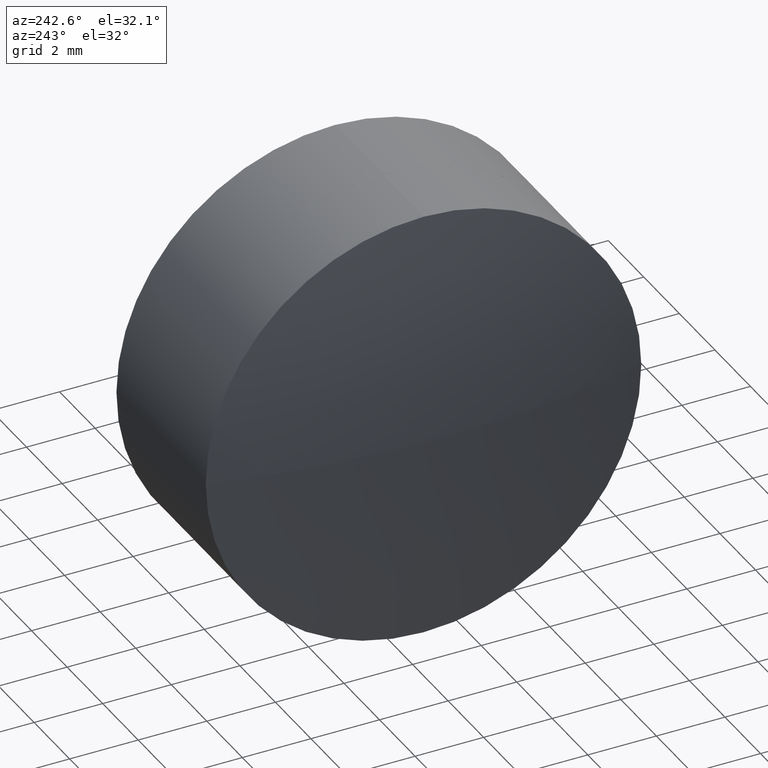
[diagram: clean part render]
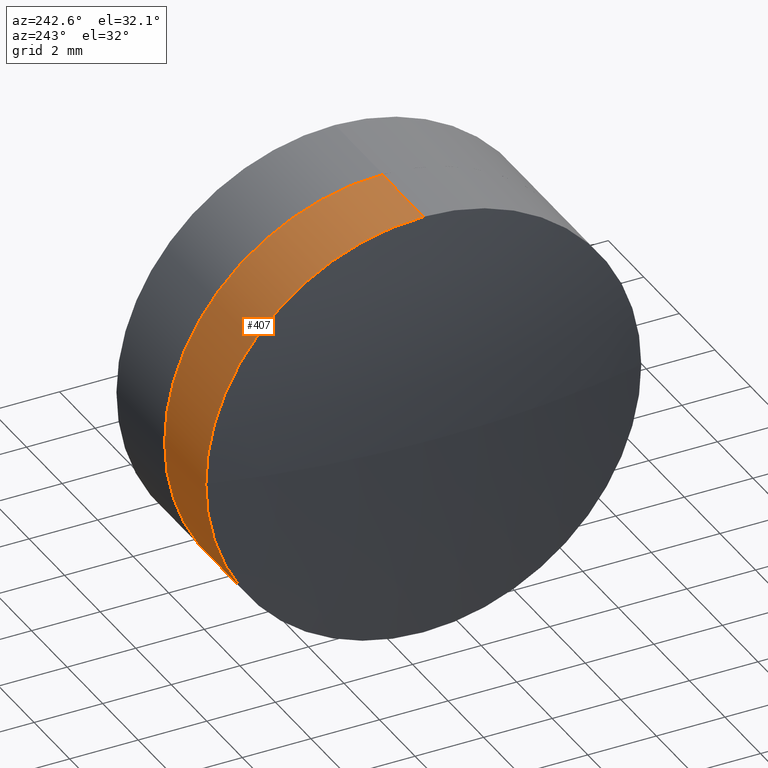
[diagram: same view with one face highlighted and labeled with its STEP entity id]
A machine part, auxiliary view. The second image highlights one B-rep face of the part: STEP entity #407.
In plain terms, the highlighted cylindrical surface (partial cylindrical patch) has radius 6.35 mm, axis along (-1, -0, -0).
Its self-contained STEP definition (entity closure, byte-faithful):
#2 = DIRECTION ( 'NONE',  ( -1.000000000000000000, -0.000000000000000000, -0.000000000000000000 ) ) ;
#3 = VERTEX_POINT ( 'NONE', #325 ) ;
#9 = CYLINDRICAL_SURFACE ( 'NONE', #90, 6.349999999999999645 ) ;
#12 = EDGE_LOOP ( 'NONE', ( #299, #343, #246, #37, #244, #383 ) ) ;
#25 = AXIS2_PLACEMENT_3D ( 'NONE', #27, #62, #444 ) ;
#27 = CARTESIAN_POINT ( 'NONE',  ( -42.82922239068432191, 29.23725402614865843, 0.000000000000000000 ) ) ;
#29 = CARTESIAN_POINT ( 'NONE',  ( -45.92046947869103235, 29.23725402614865843, -6.349999999999999645 ) ) ;
#32 = CARTESIAN_POINT ( 'NONE',  ( -42.82922239068432191, 29.23725402614865843, 6.349999999999999645 ) ) ;
#36 = FACE_OUTER_BOUND ( 'NONE', #12, .T. ) ;
#37 = ORIENTED_EDGE ( 'NONE', *, *, #147, .F. ) ;
#55 = CIRCLE ( 'NONE', #146, 6.349999999999999645 ) ;
#62 = DIRECTION ( 'NONE',  ( -1.000000000000000000, -0.000000000000000000, -0.000000000000000000 ) ) ;
#69 = DIRECTION ( 'NONE',  ( 0.000000000000000000, 0.000000000000000000, 1.000000000000000000 ) ) ;
#70 = AXIS2_PLACEMENT_3D ( 'NONE', #399, #368, #168 ) ;
#90 = AXIS2_PLACEMENT_3D ( 'NONE', #416, #139, #384 ) ;
#99 = CARTESIAN_POINT ( 'NONE',  ( -42.82922239068432191, 29.23725402614865843, 0.000000000000000000 ) ) ;
#117 = VERTEX_POINT ( 'NONE', #439 ) ;
#126 = EDGE_CURVE ( 'NONE', #423, #176, #164, .T. ) ;
#132 = CARTESIAN_POINT ( 'NONE',  ( -42.82922239068432191, 35.58725402614864919, 0.000000000000000000 ) ) ;
#139 = DIRECTION ( 'NONE',  ( -1.000000000000000000, -0.000000000000000000, -0.000000000000000000 ) ) ;
#146 = AXIS2_PLACEMENT_3D ( 'NONE', #99, #2, #413 ) ;
#147 = EDGE_CURVE ( 'NONE', #176, #117, #193, .T. ) ;
#149 = VECTOR ( 'NONE', #333, 1000.000000000000000 ) ;
#164 = LINE ( 'NONE', #304, #149 ) ;
#165 = CARTESIAN_POINT ( 'NONE',  ( -45.14358939782461988, 29.23725402614865843, 6.349999999999999645 ) ) ;
#168 = DIRECTION ( 'NONE',  ( 0.000000000000000000, 0.000000000000000000, 1.000000000000000000 ) ) ;
#170 = VERTEX_POINT ( 'NONE', #199 ) ;
#176 = VERTEX_POINT ( 'NONE', #165 ) ;
#193 = CIRCLE ( 'NONE', #70, 6.349999999999999645 ) ;
#194 = EDGE_CURVE ( 'NONE', #423, #209, #323, .T. ) ;
#199 = CARTESIAN_POINT ( 'NONE',  ( -42.82922239068432191, 29.23725402614865843, -6.349999999999999645 ) ) ;
#209 = VERTEX_POINT ( 'NONE', #132 ) ;
#244 = ORIENTED_EDGE ( 'NONE', *, *, #126, .F. ) ;
#246 = ORIENTED_EDGE ( 'NONE', *, *, #313, .F. ) ;
#274 = EDGE_CURVE ( 'NONE', #170, #3, #302, .T. ) ;
#275 = DIRECTION ( 'NONE',  ( -1.000000000000000000, -0.000000000000000000, -0.000000000000000000 ) ) ;
#286 = AXIS2_PLACEMENT_3D ( 'NONE', #346, #275, #69 ) ;
#299 = ORIENTED_EDGE ( 'NONE', *, *, #329, .T. ) ;
#302 = LINE ( 'NONE', #29, #433 ) ;
#303 = DIRECTION ( 'NONE',  ( -1.000000000000000000, -0.000000000000000000, -0.000000000000000000 ) ) ;
#304 = CARTESIAN_POINT ( 'NONE',  ( -45.92046947869103235, 29.23725402614865843, 6.349999999999999645 ) ) ;
#313 = EDGE_CURVE ( 'NONE', #117, #3, #397, .T. ) ;
#323 = CIRCLE ( 'NONE', #25, 6.349999999999999645 ) ;
#325 = CARTESIAN_POINT ( 'NONE',  ( -45.14358939782461988, 29.23725402614865843, -6.349999999999999645 ) ) ;
#329 = EDGE_CURVE ( 'NONE', #209, #170, #55, .T. ) ;
#333 = DIRECTION ( 'NONE',  ( -1.000000000000000000, -0.000000000000000000, -0.000000000000000000 ) ) ;
#343 = ORIENTED_EDGE ( 'NONE', *, *, #274, .T. ) ;
#346 = CARTESIAN_POINT ( 'NONE',  ( -45.14358939782461988, 29.23725402614865843, 0.000000000000000000 ) ) ;
#368 = DIRECTION ( 'NONE',  ( -1.000000000000000000, -0.000000000000000000, -0.000000000000000000 ) ) ;
#383 = ORIENTED_EDGE ( 'NONE', *, *, #194, .T. ) ;
#384 = DIRECTION ( 'NONE',  ( 0.000000000000000000, 0.000000000000000000, 1.000000000000000000 ) ) ;
#397 = CIRCLE ( 'NONE', #286, 6.349999999999999645 ) ;
#399 = CARTESIAN_POINT ( 'NONE',  ( -45.14358939782461988, 29.23725402614865843, 0.000000000000000000 ) ) ;
#407 = ADVANCED_FACE ( 'NONE', ( #36 ), #9, .T. ) ;
#413 = DIRECTION ( 'NONE',  ( 0.000000000000000000, 0.000000000000000000, 1.000000000000000000 ) ) ;
#416 = CARTESIAN_POINT ( 'NONE',  ( -45.92046947869103235, 29.23725402614865843, 0.000000000000000000 ) ) ;
#423 = VERTEX_POINT ( 'NONE', #32 ) ;
#433 = VECTOR ( 'NONE', #303, 1000.000000000000000 ) ;
#439 = CARTESIAN_POINT ( 'NONE',  ( -45.14358939782461988, 35.58725402614855682, 0.000000000000000000 ) ) ;
#444 = DIRECTION ( 'NONE',  ( 0.000000000000000000, 0.000000000000000000, 1.000000000000000000 ) ) ;